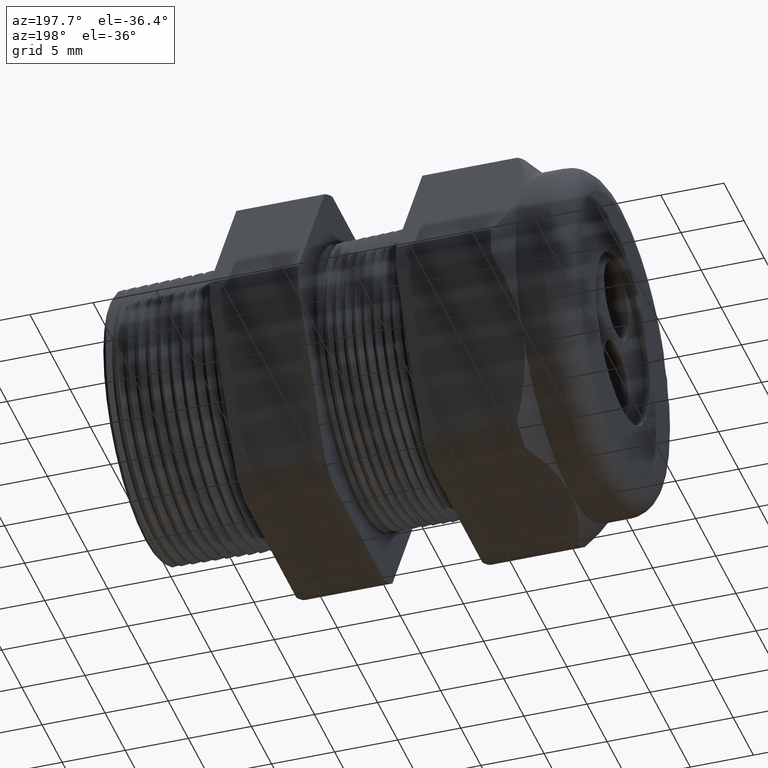
[diagram: clean part render]
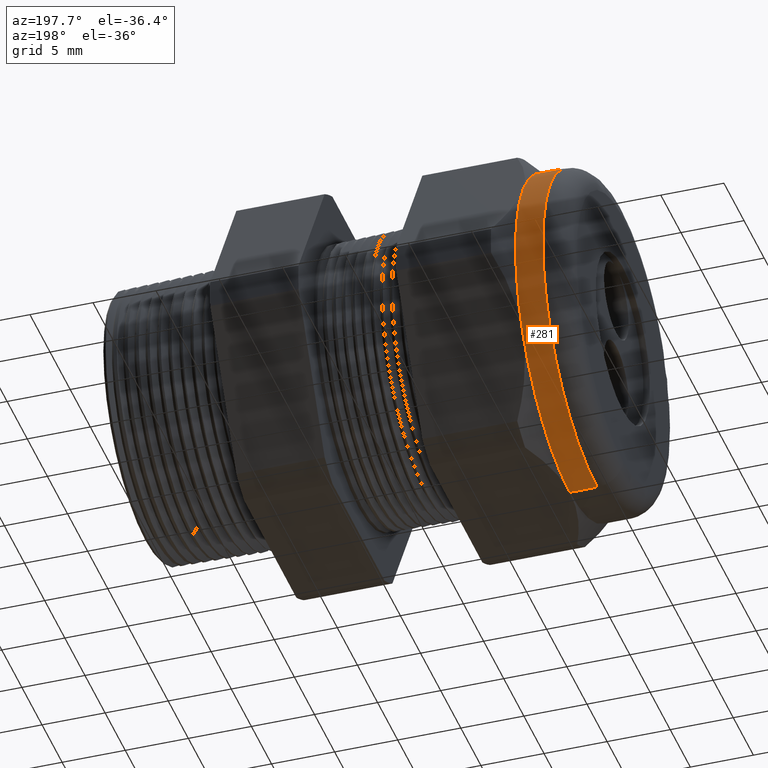
[diagram: same view with one face highlighted and labeled with its STEP entity id]
A machine part, auxiliary view. The second image highlights one B-rep face of the part: STEP entity #281.
In plain terms, the highlighted cylindrical surface (partial cylindrical patch) has radius 13.462 mm, axis along (1, 0, 0).
Its self-contained STEP definition (entity closure, byte-faithful):
#244 = EDGE_CURVE ( 'NONE', #245, #246, #2090, .T. ) ;
#245 = VERTEX_POINT ( 'NONE', #2085 ) ;
#246 = VERTEX_POINT ( 'NONE', #2084 ) ;
#281 = ADVANCED_FACE ( 'NONE', ( #2136 ), #2197, .T. ) ;
#282 = EDGE_LOOP ( 'NONE', ( #283, #284, #340, #343, #346, #349 ) ) ;
#283 = ORIENTED_EDGE ( 'NONE', *, *, #244, .T. ) ;
#284 = ORIENTED_EDGE ( 'NONE', *, *, #285, .T. ) ;
#285 = EDGE_CURVE ( 'NONE', #246, #286, #2193, .T. ) ;
#286 = VERTEX_POINT ( 'NONE', #2189 ) ;
#340 = ORIENTED_EDGE ( 'NONE', *, *, #341, .F. ) ;
#341 = EDGE_CURVE ( 'NONE', #342, #286, #2279, .T. ) ;
#342 = VERTEX_POINT ( 'NONE', #2274 ) ;
#343 = ORIENTED_EDGE ( 'NONE', *, *, #344, .F. ) ;
#344 = EDGE_CURVE ( 'NONE', #345, #342, #2273, .T. ) ;
#345 = VERTEX_POINT ( 'NONE', #2268 ) ;
#346 = ORIENTED_EDGE ( 'NONE', *, *, #347, .F. ) ;
#347 = EDGE_CURVE ( 'NONE', #348, #345, #2266, .T. ) ;
#348 = VERTEX_POINT ( 'NONE', #2324 ) ;
#349 = ORIENTED_EDGE ( 'NONE', *, *, #350, .F. ) ;
#350 = EDGE_CURVE ( 'NONE', #245, #348, #2323, .T. ) ;
#2013 = DIRECTION ( 'NONE',  ( 0.0000000000000000000, 0.0000000000000000000, -1.000000000000000000 ) ) ;
#2084 = CARTESIAN_POINT ( 'NONE',  ( -1.330000000000000300, 6.490628035480971200E-017, 0.5299999999999999200 ) ) ;
#2085 = CARTESIAN_POINT ( 'NONE',  ( -1.330000000000000300, 0.0000000000000000000, -0.5299999999999999200 ) ) ;
#2086 = DIRECTION ( 'NONE',  ( 0.0000000000000000000, 0.0000000000000000000, 1.000000000000000000 ) ) ;
#2087 = DIRECTION ( 'NONE',  ( 1.000000000000000000, 0.0000000000000000000, 0.0000000000000000000 ) ) ;
#2088 = CARTESIAN_POINT ( 'NONE',  ( -1.330000000000000300, 0.0000000000000000000, 0.0000000000000000000 ) ) ;
#2089 = AXIS2_PLACEMENT_3D ( 'NONE', #2088, #2087, #2086 ) ;
#2090 = CIRCLE ( 'NONE', #2089, 0.5299999999999999200 ) ;
#2136 = FACE_OUTER_BOUND ( 'NONE', #282, .T. ) ;
#2141 = CARTESIAN_POINT ( 'NONE',  ( 0.0000000000000000000, 0.0000000000000000000, 0.0000000000000000000 ) ) ;
#2189 = CARTESIAN_POINT ( 'NONE',  ( -1.244645669291338800, 0.0000000000000000000, 0.5300000000000001400 ) ) ;
#2190 = DIRECTION ( 'NONE',  ( 1.000000000000000000, 0.0000000000000000000, 0.0000000000000000000 ) ) ;
#2191 = VECTOR ( 'NONE', #2190, 39.37007874015748100 ) ;
#2192 = CARTESIAN_POINT ( 'NONE',  ( 0.0000000000000000000, 6.490628035480971200E-017, 0.5299999999999999200 ) ) ;
#2193 = LINE ( 'NONE', #2192, #2191 ) ;
#2194 = DIRECTION ( 'NONE',  ( 0.0000000000000000000, 0.0000000000000000000, -1.000000000000000000 ) ) ;
#2195 = DIRECTION ( 'NONE',  ( 1.000000000000000000, 0.0000000000000000000, 0.0000000000000000000 ) ) ;
#2196 = AXIS2_PLACEMENT_3D ( 'NONE', #2141, #2195, #2194 ) ;
#2197 = CYLINDRICAL_SURFACE ( 'NONE', #2196, 0.5299999999999999200 ) ;
#2263 = DIRECTION ( 'NONE',  ( 1.000000000000000000, 0.0000000000000000000, 0.0000000000000000000 ) ) ;
#2264 = CARTESIAN_POINT ( 'NONE',  ( -1.244645669291338800, 0.0000000000000000000, 0.0000000000000000000 ) ) ;
#2265 = AXIS2_PLACEMENT_3D ( 'NONE', #2264, #2263, #2013 ) ;
#2266 = CIRCLE ( 'NONE', #2265, 0.5299999999999999200 ) ;
#2268 = CARTESIAN_POINT ( 'NONE',  ( -1.244645669291338800, 0.4589934640057524700, -0.2650000000000000700 ) ) ;
#2269 = DIRECTION ( 'NONE',  ( 0.0000000000000000000, 0.0000000000000000000, -1.000000000000000000 ) ) ;
#2270 = DIRECTION ( 'NONE',  ( 1.000000000000000000, 0.0000000000000000000, 0.0000000000000000000 ) ) ;
#2271 = CARTESIAN_POINT ( 'NONE',  ( -1.244645669291338800, 0.0000000000000000000, 0.0000000000000000000 ) ) ;
#2272 = AXIS2_PLACEMENT_3D ( 'NONE', #2271, #2270, #2269 ) ;
#2273 = CIRCLE ( 'NONE', #2272, 0.5299999999999999200 ) ;
#2274 = CARTESIAN_POINT ( 'NONE',  ( -1.244645669291338800, 0.4589934640057526900, 0.2650000000000002900 ) ) ;
#2275 = DIRECTION ( 'NONE',  ( 0.0000000000000000000, 0.0000000000000000000, -1.000000000000000000 ) ) ;
#2276 = DIRECTION ( 'NONE',  ( 1.000000000000000000, 0.0000000000000000000, 0.0000000000000000000 ) ) ;
#2277 = CARTESIAN_POINT ( 'NONE',  ( -1.244645669291338800, 0.0000000000000000000, 0.0000000000000000000 ) ) ;
#2278 = AXIS2_PLACEMENT_3D ( 'NONE', #2277, #2276, #2275 ) ;
#2279 = CIRCLE ( 'NONE', #2278, 0.5299999999999999200 ) ;
#2320 = DIRECTION ( 'NONE',  ( 1.000000000000000000, 0.0000000000000000000, 0.0000000000000000000 ) ) ;
#2321 = VECTOR ( 'NONE', #2320, 39.37007874015748100 ) ;
#2322 = CARTESIAN_POINT ( 'NONE',  ( 0.0000000000000000000, 0.0000000000000000000, -0.5299999999999999200 ) ) ;
#2323 = LINE ( 'NONE', #2322, #2321 ) ;
#2324 = CARTESIAN_POINT ( 'NONE',  ( -1.244645669291338800, 0.0000000000000000000, -0.5300000000000000300 ) ) ;